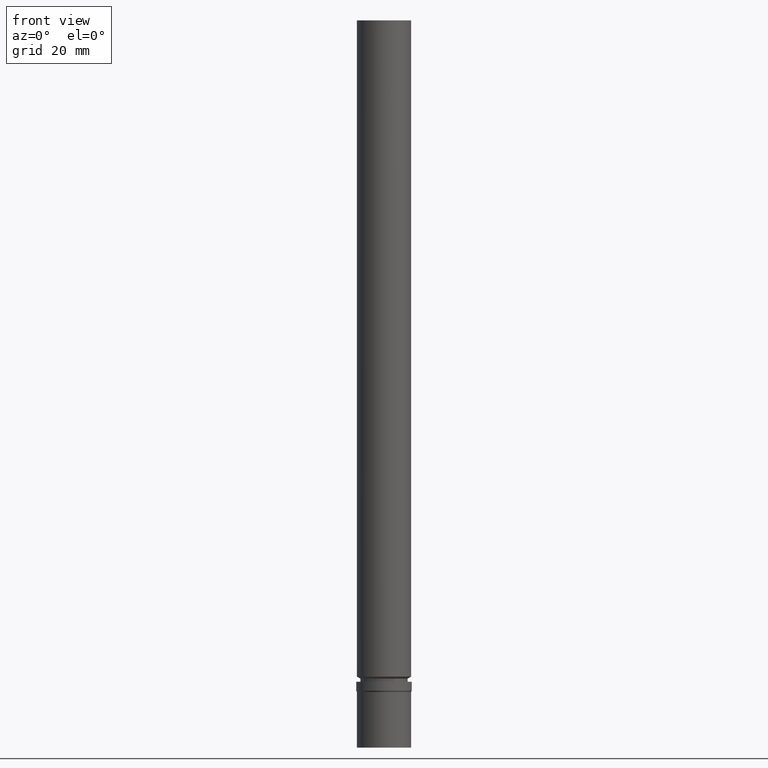
[diagram: clean part render]
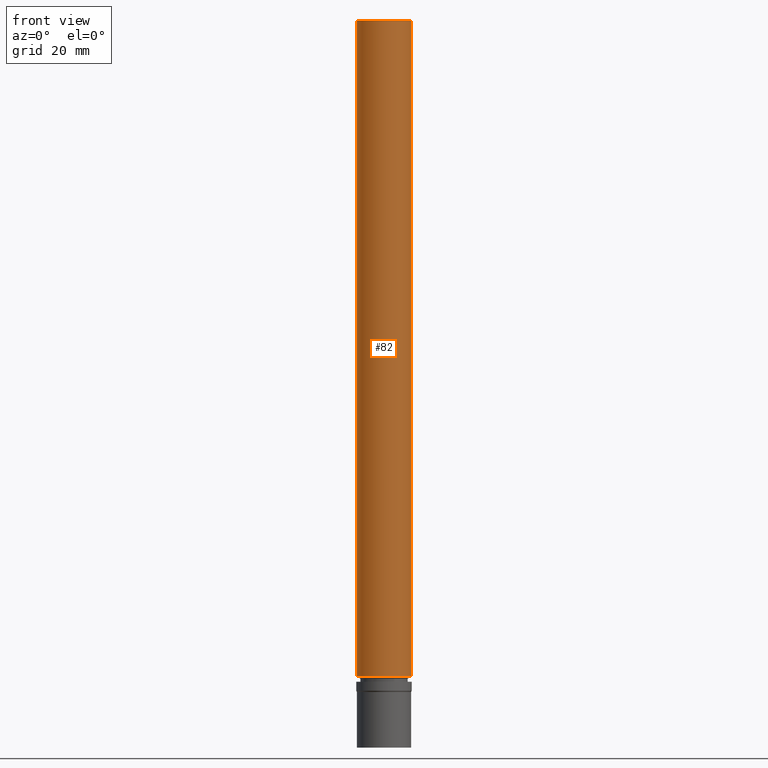
[diagram: same view with one face highlighted and labeled with its STEP entity id]
A machine part, front view. The second image highlights one B-rep face of the part: STEP entity #82.
In plain terms, the highlighted cylindrical surface (bore or boss wall) has radius 6 mm, axis along (-0, -0, 1).
Its self-contained STEP definition (entity closure, byte-faithful):
#82=ADVANCED_FACE('',(#104,#105),#106,.T.);
#104=FACE_BOUND('',#129,.T.);
#105=FACE_BOUND('',#130,.T.);
#106=CYLINDRICAL_SURFACE('',#131,6.0);
#129=EDGE_LOOP('',(#168));
#130=EDGE_LOOP('',(#169));
#131=AXIS2_PLACEMENT_3D('',#170,#171,#172);
#168=ORIENTED_EDGE('',*,*,#185,.F.);
#169=ORIENTED_EDGE('',*,*,#184,.T.);
#170=CARTESIAN_POINT('',(-5.37659642100301E-015,-1.0753192842006E-014,87.8064830569338));
#171=DIRECTION('',(-6.12323399573677E-017,-1.22464679914735E-016,1.0));
#172=DIRECTION('',(-1.23259516440783E-032,1.0,1.22464679914735E-016));
#184=EDGE_CURVE('',#198,#198,#199,.T.);
#185=EDGE_CURVE('',#200,#200,#201,.T.);
#198=VERTEX_POINT('',#214);
#199=CIRCLE('',#215,6.0);
#200=VERTEX_POINT('',#216);
#201=CIRCLE('',#217,6.0);
#214=CARTESIAN_POINT('',(-9.79717439317883E-015,5.99999999999998,160.0));
#215=AXIS2_PLACEMENT_3D('',#236,#237,#238);
#216=CARTESIAN_POINT('',(-9.56018448827197E-016,6.0,15.6129661138675));
#217=AXIS2_PLACEMENT_3D('',#239,#240,#241);
#236=CARTESIAN_POINT('',(-9.79717439317883E-015,-1.95943487863576E-014,160.0));
#237=DIRECTION('',(6.12323399573677E-017,1.22464679914735E-016,-1.0));
#238=DIRECTION('',(-1.23259516440783E-032,1.0,1.22464679914735E-016));
#239=CARTESIAN_POINT('',(-9.56018448827197E-016,-1.91203689765439E-015,15.6129661138675));
#240=DIRECTION('',(6.12323399573677E-017,1.22464679914735E-016,-1.0));
#241=DIRECTION('',(-1.23259516440783E-032,1.0,1.22464679914735E-016));